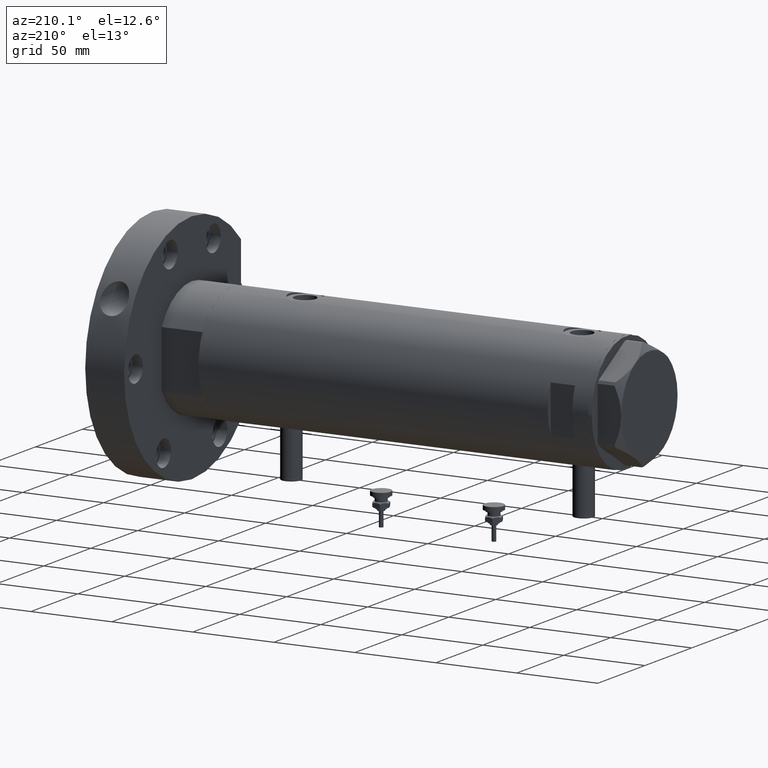
[diagram: clean part render]
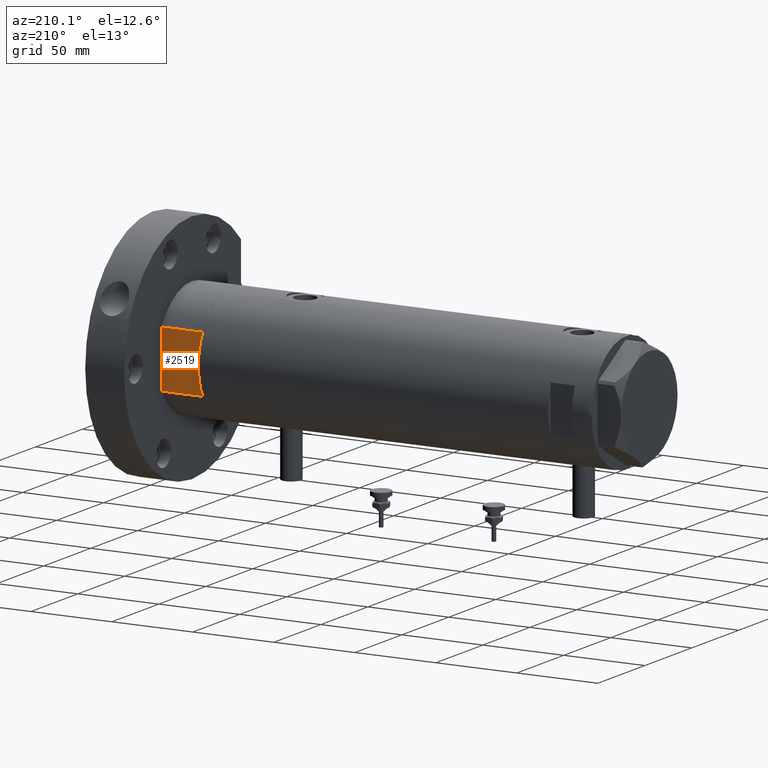
[diagram: same view with one face highlighted and labeled with its STEP entity id]
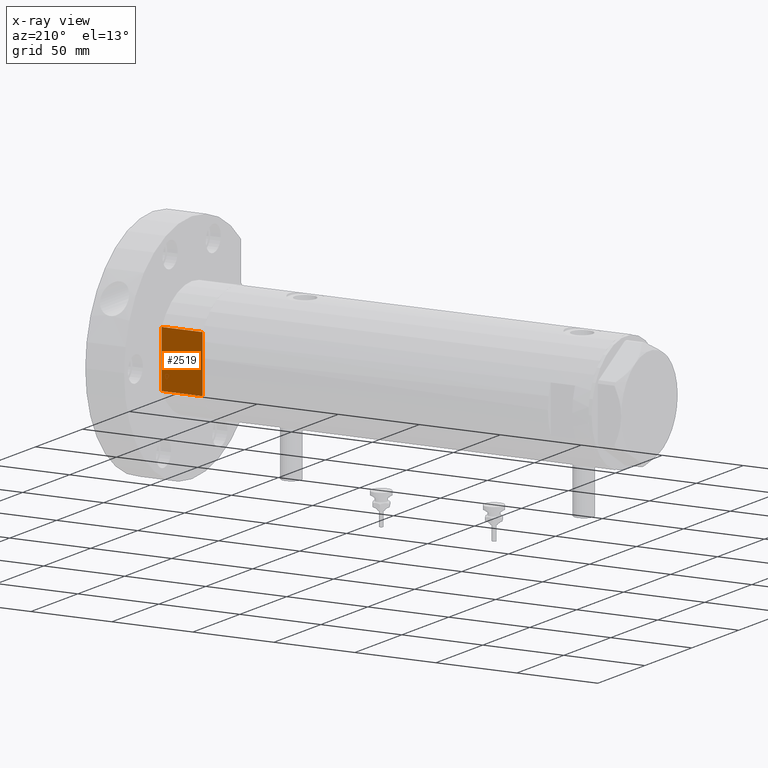
[diagram: x-ray of the same camera — body ghosted, the highlighted face saturated]
A machine part, auxiliary view. The second image highlights one B-rep face of the part: STEP entity #2519.
The next image is the same camera in x-ray: the body ghosted, the highlighted face saturated — about 0% of this face is hidden behind the body in this view.
In plain terms, the highlighted planar face has unit normal (0, -1, -0).
Its self-contained STEP definition (entity closure, byte-faithful):
#590 = PLANE ( 'NONE',  #1346 ) ;
#618 = EDGE_CURVE ( 'NONE', #2197, #1662, #2935, .T. ) ;
#693 = VECTOR ( 'NONE', #6983, 1000.000000000000000 ) ;
#949 = CARTESIAN_POINT ( 'NONE',  ( -17.55704986607943141, 32.00000000000000000, 0.000000000000000000 ) ) ;
#1103 = CARTESIAN_POINT ( 'NONE',  ( -17.55704986607943141, 32.00000000000000000, 0.000000000000000000 ) ) ;
#1262 = CARTESIAN_POINT ( 'NONE',  ( 17.55704986607943496, 32.00000000000000000, 25.19999999999999929 ) ) ;
#1328 = DIRECTION ( 'NONE',  ( 0.000000000000000000, -1.000000000000000000, 0.000000000000000000 ) ) ;
#1340 = VERTEX_POINT ( 'NONE', #6416 ) ;
#1346 = AXIS2_PLACEMENT_3D ( 'NONE', #4154, #1328, #3667 ) ;
#1407 = VERTEX_POINT ( 'NONE', #1262 ) ;
#1662 = VERTEX_POINT ( 'NONE', #3930 ) ;
#1952 = EDGE_CURVE ( 'NONE', #1340, #1407, #6587, .T. ) ;
#2066 = LINE ( 'NONE', #6826, #6127 ) ;
#2197 = VERTEX_POINT ( 'NONE', #949 ) ;
#2246 = CARTESIAN_POINT ( 'NONE',  ( -17.55704986607943141, 32.00000000000000000, 0.000000000000000000 ) ) ;
#2372 = DIRECTION ( 'NONE',  ( 1.000000000000000000, 0.000000000000000000, 0.000000000000000000 ) ) ;
#2519 = ADVANCED_FACE ( 'NONE', ( #6565 ), #590, .F. ) ;
#2630 = ORIENTED_EDGE ( 'NONE', *, *, #618, .F. ) ;
#2683 = EDGE_LOOP ( 'NONE', ( #4688, #6831, #6349, #2630, #3224 ) ) ;
#2935 = LINE ( 'NONE', #3584, #693 ) ;
#3224 = ORIENTED_EDGE ( 'NONE', *, *, #6313, .T. ) ;
#3401 = EDGE_CURVE ( 'NONE', #1662, #1340, #3939, .T. ) ;
#3584 = CARTESIAN_POINT ( 'NONE',  ( -17.55704986607943141, 32.00000000000000000, 0.000000000000000000 ) ) ;
#3667 = DIRECTION ( 'NONE',  ( 0.000000000000000000, -0.000000000000000000, -1.000000000000000000 ) ) ;
#3815 = VECTOR ( 'NONE', #4565, 1000.000000000000000 ) ;
#3930 = CARTESIAN_POINT ( 'NONE',  ( 0.000000000000000000, 32.00000000000000000, 0.000000000000000000 ) ) ;
#3939 = LINE ( 'NONE', #1103, #4152 ) ;
#4152 = VECTOR ( 'NONE', #2372, 1000.000000000000000 ) ;
#4154 = CARTESIAN_POINT ( 'NONE',  ( -17.55704986607943141, 32.00000000000000000, 0.000000000000000000 ) ) ;
#4565 = DIRECTION ( 'NONE',  ( -0.000000000000000000, -0.000000000000000000, 1.000000000000000000 ) ) ;
#4688 = ORIENTED_EDGE ( 'NONE', *, *, #4982, .T. ) ;
#4982 = EDGE_CURVE ( 'NONE', #6775, #1407, #2066, .T. ) ;
#5563 = DIRECTION ( 'NONE',  ( 1.000000000000000000, 0.000000000000000000, 0.000000000000000000 ) ) ;
#5809 = CARTESIAN_POINT ( 'NONE',  ( -17.55704986607943496, 32.00000000000000000, 25.19999999999999929 ) ) ;
#5930 = CARTESIAN_POINT ( 'NONE',  ( 17.55704986607943141, 32.00000000000000000, 0.000000000000000000 ) ) ;
#6127 = VECTOR ( 'NONE', #5563, 1000.000000000000000 ) ;
#6313 = EDGE_CURVE ( 'NONE', #2197, #6775, #7491, .T. ) ;
#6337 = VECTOR ( 'NONE', #7127, 1000.000000000000000 ) ;
#6349 = ORIENTED_EDGE ( 'NONE', *, *, #3401, .F. ) ;
#6416 = CARTESIAN_POINT ( 'NONE',  ( 17.55704986607943496, 32.00000000000000000, 0.000000000000000000 ) ) ;
#6565 = FACE_OUTER_BOUND ( 'NONE', #2683, .T. ) ;
#6587 = LINE ( 'NONE', #5930, #6337 ) ;
#6775 = VERTEX_POINT ( 'NONE', #5809 ) ;
#6826 = CARTESIAN_POINT ( 'NONE',  ( -17.55704986607943141, 32.00000000000000000, 25.19999999999999929 ) ) ;
#6831 = ORIENTED_EDGE ( 'NONE', *, *, #1952, .F. ) ;
#6983 = DIRECTION ( 'NONE',  ( 1.000000000000000000, 0.000000000000000000, 0.000000000000000000 ) ) ;
#7127 = DIRECTION ( 'NONE',  ( -0.000000000000000000, -0.000000000000000000, 1.000000000000000000 ) ) ;
#7491 = LINE ( 'NONE', #2246, #3815 ) ;